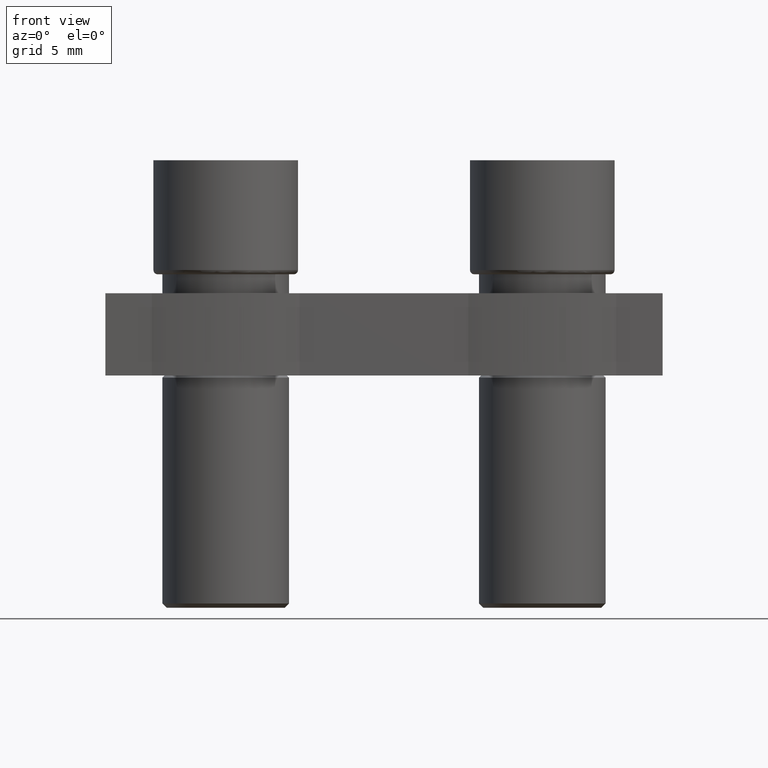
[diagram: clean part render]
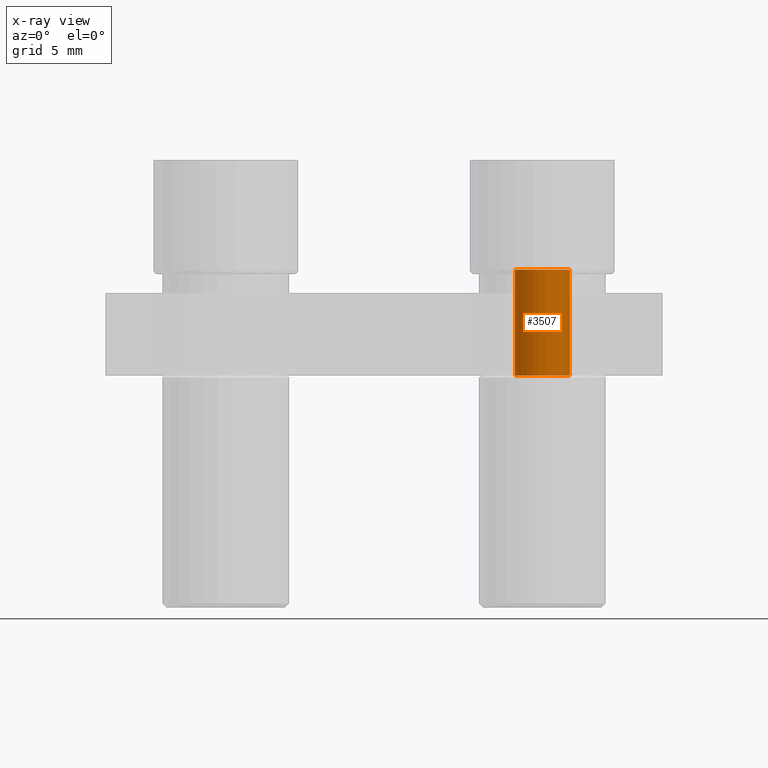
[diagram: x-ray — body ghosted, one internal face saturated and labeled with its STEP entity id]
A machine part, front view, then the same camera in x-ray: the body is ghosted and one INTERNAL B-rep face — a face not visible from any outside direction — is saturated and labeled: STEP entity #3507.
In plain terms, the highlighted cylindrical surface (edge-blend (fillet) strip) has radius 1.3 mm, axis along (-0, 0, -1).
Its self-contained STEP definition (entity closure, byte-faithful):
#125 = DIRECTION ( 'NONE',  ( -0.0000000000000000000, 0.0000000000000000000, -1.000000000000000000 ) ) ;
#131 = CARTESIAN_POINT ( 'NONE',  ( 16.30000000000164900, 2.192395201553872500E-015, -18.28430778516076700 ) ) ;
#132 = LINE ( 'NONE', #131, #3102 ) ;
#147 = LINE ( 'NONE', #191, #3090 ) ;
#180 = DIRECTION ( 'NONE',  ( -0.0000000000000000000, 0.0000000000000000000, -1.000000000000000000 ) ) ;
#191 = CARTESIAN_POINT ( 'NONE',  ( 13.70000000000165000, 1.385437989932950800E-015, -18.28430778516076700 ) ) ;
#497 = FACE_OUTER_BOUND ( 'NONE', #2021, .T. ) ;
#498 = CYLINDRICAL_SURFACE ( 'NONE', #3127, 1.299999999999999200 ) ;
#499 = CARTESIAN_POINT ( 'NONE',  ( 15.00000000000165000, 1.868518637687989600E-015, -18.28430778516076700 ) ) ;
#503 = DIRECTION ( 'NONE',  ( -0.0000000000000000000, 0.0000000000000000000, -1.000000000000000000 ) ) ;
#532 = DIRECTION ( 'NONE',  ( 1.000000000000000000, 2.491358183583715900E-016, 0.0000000000000000000 ) ) ;
#788 = CARTESIAN_POINT ( 'NONE',  ( 15.00000000000165000, 1.868518637687989600E-015, -4.800000000000002500 ) ) ;
#795 = DIRECTION ( 'NONE',  ( -1.000000000000000000, -2.491358183583711400E-016, 0.0000000000000000000 ) ) ;
#813 = DIRECTION ( 'NONE',  ( -0.0000000000000000000, -0.0000000000000000000, -1.000000000000000000 ) ) ;
#1319 = DIRECTION ( 'NONE',  ( 0.0000000000000000000, -0.0000000000000000000, 1.000000000000000000 ) ) ;
#1345 = CARTESIAN_POINT ( 'NONE',  ( 15.00000000000165000, 1.868518637687989600E-015, 0.2156922148392366500 ) ) ;
#1366 = DIRECTION ( 'NONE',  ( 1.000000000000000000, 2.491358183583715900E-016, 0.0000000000000000000 ) ) ;
#1848 = CARTESIAN_POINT ( 'NONE',  ( 13.70000000000165000, 1.385437989932951000E-015, -4.800000000000002500 ) ) ;
#1858 = ORIENTED_EDGE ( 'NONE', *, *, #3435, .F. ) ;
#1861 = ORIENTED_EDGE ( 'NONE', *, *, #3459, .T. ) ;
#1899 = ORIENTED_EDGE ( 'NONE', *, *, #3352, .F. ) ;
#2021 = EDGE_LOOP ( 'NONE', ( #1899, #1861, #1858, #2692 ) ) ;
#2104 = CARTESIAN_POINT ( 'NONE',  ( 13.70000000000165000, 1.385437989932951000E-015, 0.2156922148392366500 ) ) ;
#2150 = CARTESIAN_POINT ( 'NONE',  ( 16.30000000000164900, 2.192395201553872900E-015, -4.800000000000002500 ) ) ;
#2163 = CARTESIAN_POINT ( 'NONE',  ( 16.30000000000164900, 2.192395201553872500E-015, 0.2156922148392366500 ) ) ;
#2264 = VERTEX_POINT ( 'NONE', #2104 ) ;
#2303 = VERTEX_POINT ( 'NONE', #2163 ) ;
#2304 = VERTEX_POINT ( 'NONE', #2150 ) ;
#2338 = VERTEX_POINT ( 'NONE', #1848 ) ;
#2692 = ORIENTED_EDGE ( 'NONE', *, *, #3453, .F. ) ;
#2946 = CIRCLE ( 'NONE', #2954, 1.299999999999999200 ) ;
#2954 = AXIS2_PLACEMENT_3D ( 'NONE', #1345, #1319, #1366 ) ;
#3061 = CIRCLE ( 'NONE', #3111, 1.300000000000000700 ) ;
#3090 = VECTOR ( 'NONE', #180, 1000.000000000000000 ) ;
#3102 = VECTOR ( 'NONE', #125, 1000.000000000000000 ) ;
#3111 = AXIS2_PLACEMENT_3D ( 'NONE', #788, #813, #795 ) ;
#3127 = AXIS2_PLACEMENT_3D ( 'NONE', #499, #503, #532 ) ;
#3352 = EDGE_CURVE ( 'NONE', #2264, #2303, #2946, .T. ) ;
#3435 = EDGE_CURVE ( 'NONE', #2304, #2338, #3061, .T. ) ;
#3453 = EDGE_CURVE ( 'NONE', #2303, #2304, #132, .T. ) ;
#3459 = EDGE_CURVE ( 'NONE', #2264, #2338, #147, .T. ) ;
#3507 = ADVANCED_FACE ( 'NONE', ( #497 ), #498, .T. ) ;